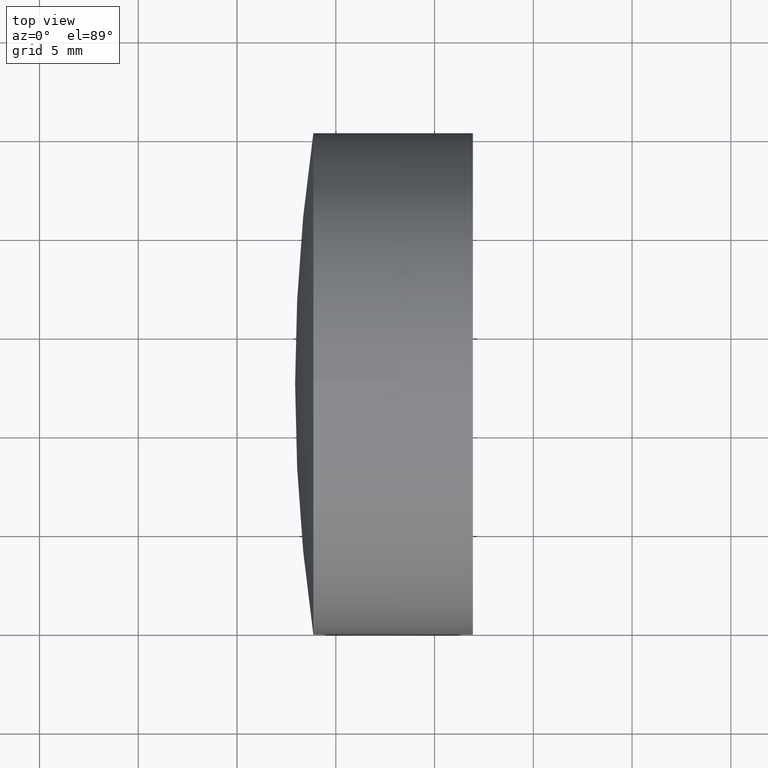
[diagram: clean part render]
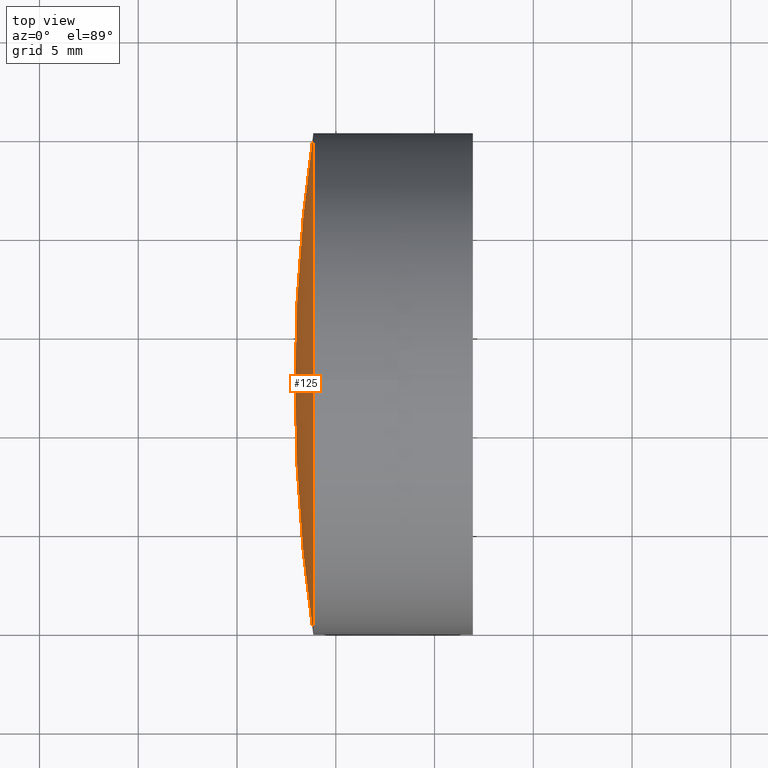
[diagram: same view with one face highlighted and labeled with its STEP entity id]
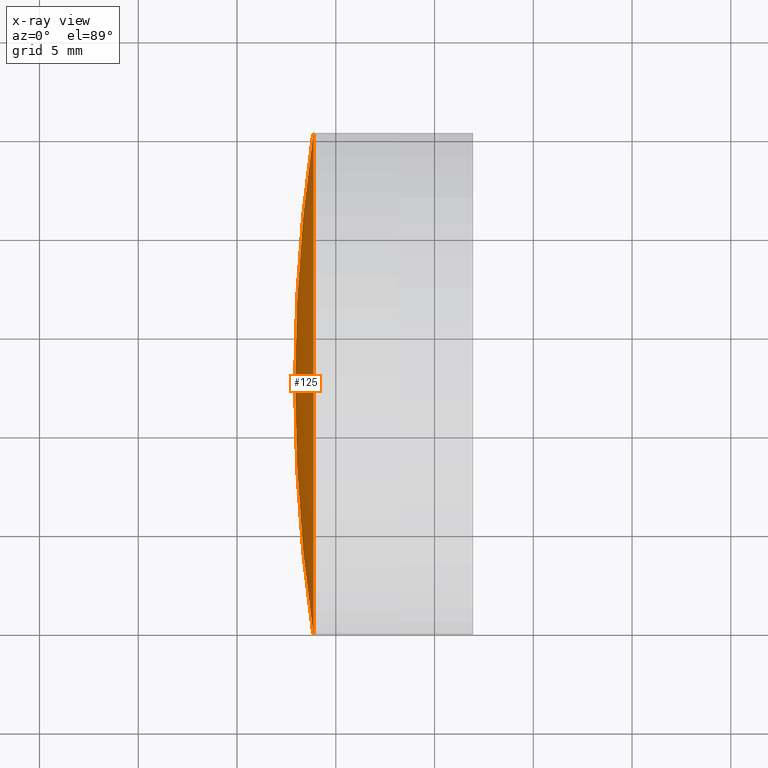
[diagram: x-ray of the same camera — body ghosted, the highlighted face saturated]
A machine part, top view. The second image highlights one B-rep face of the part: STEP entity #125.
The next image is the same camera in x-ray: the body ghosted, the highlighted face saturated — about 0% of this face is hidden behind the body in this view.
In plain terms, the highlighted spherical surface has radius 87.86 mm.
Its self-contained STEP definition (entity closure, byte-faithful):
#3 = CARTESIAN_POINT ( 'NONE',  ( -36.13668689039688076, 32.49878037169512623, 0.000000000000000000 ) ) ;
#17 = ORIENTED_EDGE ( 'NONE', *, *, #151, .F. ) ;
#21 = SPHERICAL_SURFACE ( 'NONE', #195, 87.85999999999999943 ) ;
#28 = CARTESIAN_POINT ( 'NONE',  ( -37.05941295107898981, 32.49878037169513334, 0.000000000000000000 ) ) ;
#33 = DIRECTION ( 'NONE',  ( -1.000000000000000000, -0.000000000000000000, -0.000000000000000000 ) ) ;
#35 = AXIS2_PLACEMENT_3D ( 'NONE', #141, #231, #259 ) ;
#36 = DIRECTION ( 'NONE',  ( 0.000000000000000000, 0.000000000000000000, 1.000000000000000000 ) ) ;
#73 = AXIS2_PLACEMENT_3D ( 'NONE', #268, #181, #356 ) ;
#75 = ORIENTED_EDGE ( 'NONE', *, *, #179, .T. ) ;
#108 = CARTESIAN_POINT ( 'NONE',  ( 50.80058704892100963, 32.49878037169512623, 0.000000000000000000 ) ) ;
#117 = CIRCLE ( 'NONE', #73, 87.85999999999999943 ) ;
#125 = ADVANCED_FACE ( 'NONE', ( #257 ), #21, .T. ) ;
#126 = VERTEX_POINT ( 'NONE', #314 ) ;
#141 = CARTESIAN_POINT ( 'NONE',  ( 50.80058704892100963, 32.49878037169512623, 0.000000000000000000 ) ) ;
#146 = CIRCLE ( 'NONE', #35, 87.85999999999999943 ) ;
#151 = EDGE_CURVE ( 'NONE', #301, #252, #146, .T. ) ;
#152 = ORIENTED_EDGE ( 'NONE', *, *, #226, .T. ) ;
#179 = EDGE_CURVE ( 'NONE', #126, #252, #117, .T. ) ;
#181 = DIRECTION ( 'NONE',  ( -0.000000000000000000, 0.000000000000000000, 1.000000000000000000 ) ) ;
#184 = DIRECTION ( 'NONE',  ( -1.000000000000000000, -0.000000000000000000, -0.000000000000000000 ) ) ;
#186 = EDGE_CURVE ( 'NONE', #301, #212, #289, .T. ) ;
#189 = EDGE_LOOP ( 'NONE', ( #17, #277, #152, #75 ) ) ;
#195 = AXIS2_PLACEMENT_3D ( 'NONE', #108, #229, #197 ) ;
#197 = DIRECTION ( 'NONE',  ( 0.000000000000000000, 1.000000000000000000, 0.000000000000000000 ) ) ;
#203 = CARTESIAN_POINT ( 'NONE',  ( -36.13668689039688076, 32.49878037169512623, 0.000000000000000000 ) ) ;
#212 = VERTEX_POINT ( 'NONE', #300 ) ;
#219 = CIRCLE ( 'NONE', #330, 12.69999999999999929 ) ;
#226 = EDGE_CURVE ( 'NONE', #212, #126, #219, .T. ) ;
#229 = DIRECTION ( 'NONE',  ( -0.000000000000000000, 0.000000000000000000, -1.000000000000000000 ) ) ;
#231 = DIRECTION ( 'NONE',  ( 0.000000000000000000, 1.224646799147353207E-16, -1.000000000000000000 ) ) ;
#239 = DIRECTION ( 'NONE',  ( 0.000000000000000000, 0.000000000000000000, 1.000000000000000000 ) ) ;
#245 = AXIS2_PLACEMENT_3D ( 'NONE', #3, #184, #36 ) ;
#252 = VERTEX_POINT ( 'NONE', #28 ) ;
#257 = FACE_OUTER_BOUND ( 'NONE', #189, .T. ) ;
#259 = DIRECTION ( 'NONE',  ( 0.000000000000000000, 1.000000000000000000, 1.224646799147353207E-16 ) ) ;
#268 = CARTESIAN_POINT ( 'NONE',  ( 50.80058704892100963, 32.49878037169512623, 0.000000000000000000 ) ) ;
#277 = ORIENTED_EDGE ( 'NONE', *, *, #186, .T. ) ;
#289 = CIRCLE ( 'NONE', #245, 12.69999999999999929 ) ;
#300 = CARTESIAN_POINT ( 'NONE',  ( -36.13668689039688076, 32.49878037169512623, 12.69999999999999929 ) ) ;
#301 = VERTEX_POINT ( 'NONE', #309 ) ;
#309 = CARTESIAN_POINT ( 'NONE',  ( -36.13668689039688076, 19.79878037169516247, -1.555301434917133699E-15 ) ) ;
#314 = CARTESIAN_POINT ( 'NONE',  ( -36.13668689039688076, 45.19878037169508644, 0.000000000000000000 ) ) ;
#330 = AXIS2_PLACEMENT_3D ( 'NONE', #203, #33, #239 ) ;
#356 = DIRECTION ( 'NONE',  ( 1.000000000000000000, 0.000000000000000000, 0.000000000000000000 ) ) ;